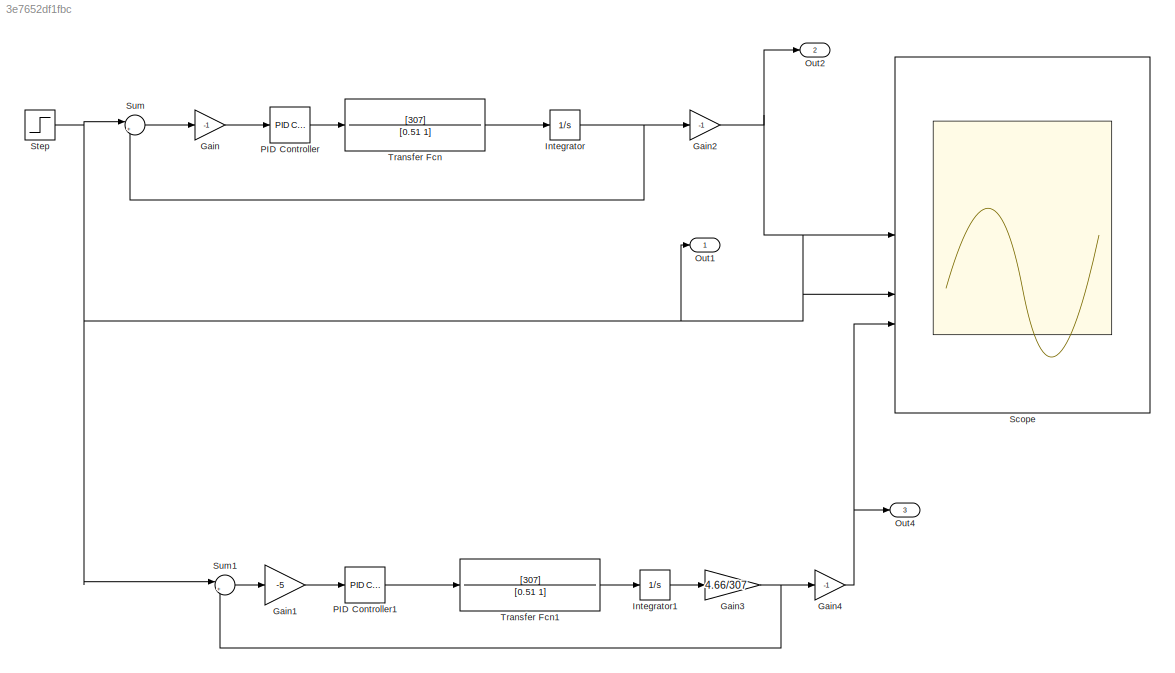
MODEL slx_3e7652df1fbc
KIND model
CONFIG AbsTol = auto
CONFIG EnableMultiTasking = off
CONFIG FixedStep = auto
CONFIG MaxStep = 1e-4
CONFIG MinStep = 1e-5
CONFIG RelTol = 1e-3
CONFIG SampleTimeConstraint = Unconstrained
CONFIG SolverName = VariableStepAuto
CONFIG StartTime = 0.0
CONFIG StopTime = 60
BLOCK [Gain] Gain
  Gain = -1
BLOCK [Gain] Gain1
  Gain = -5
BLOCK [Gain] Gain2
  Gain = -1
BLOCK [Gain] Gain3
  Gain = 4.66/307
BLOCK [Gain] Gain4
  Gain = -1
BLOCK [Integrator] Integrator
BLOCK [Integrator] Integrator1
BLOCK [Outport] Out1
  SignalName = input
BLOCK [Outport] Out2
  Port = 2
  SignalName = output_rootLoci
BLOCK [Outport] Out4
  Port = 3
  SignalName = output_lab
BLOCK [Reference] PID Controller  REF=slpidlib/PID Controller
  LibrarySourceBlock = simulink/Continuous/PID Controller
  SourceBlock = slpidlib/PID Controller
  SourceType = PID 1dof
BLOCK [Reference] PID Controller1  REF=slpidlib/PID Controller
  LibrarySourceBlock = simulink/Continuous/PID Controller
  SourceBlock = slpidlib/PID Controller
  SourceType = PID 1dof
BLOCK [Scope] Scope
  Floating = off
  NumInputPorts = 3
  ScopeSpecificationString = Simulink.scopes.TimeScopeBlockCfg('CurrentConfiguration', extmgr.ConfigurationSet(extmgr.Configuration('Core','General UI',true),extmgr.Configuration('Core','Source UI',true),extmgr.Configuration('Sources','WiredSimulink',true),extmgr.Configuration('Visuals','Time Domain',true,'SerializedDisplays',{struct('MinYLimReal','-1.036','MaxYLimReal','9.32399','YLabelReal','','MinYLimMag','0.00000','MaxYLi...<+1385ch>
BLOCK [Step] Step
  After = 5
  SampleTime = 0
BLOCK [Sum] Sum
  Inputs = |++
BLOCK [Sum] Sum1
  Inputs = |++
BLOCK [TransferFcn] Transfer Fcn
  Denominator = [0.51 1]
  Numerator = [307]
BLOCK [TransferFcn] Transfer Fcn1
  Denominator = [0.51 1]
  Numerator = [307]
LINE Gain1:1 -> PID Controller1:1
NET Gain2:1 -> Out2:1, Scope:1
NET Gain3:1 -> Gain4:1, Sum1:2
NET Gain4:1 -> Out4:1, Scope:3
LINE Gain:1 -> PID Controller:1
LINE Integrator1:1 -> Gain3:1
NET Integrator:1 -> Gain2:1, Sum:2
LINE PID Controller1:1 -> Transfer Fcn1:1
LINE PID Controller:1 -> Transfer Fcn:1
NET Step:1 -> Out1:1, Scope:2, Sum1:1, Sum:1
LINE Sum1:1 -> Gain1:1
LINE Sum:1 -> Gain:1
LINE Transfer Fcn1:1 -> Integrator1:1
LINE Transfer Fcn:1 -> Integrator:1
note: NET lines group one-source signal fan-out (src -> all destinations, sorted); 1:1 wires keep LINE
